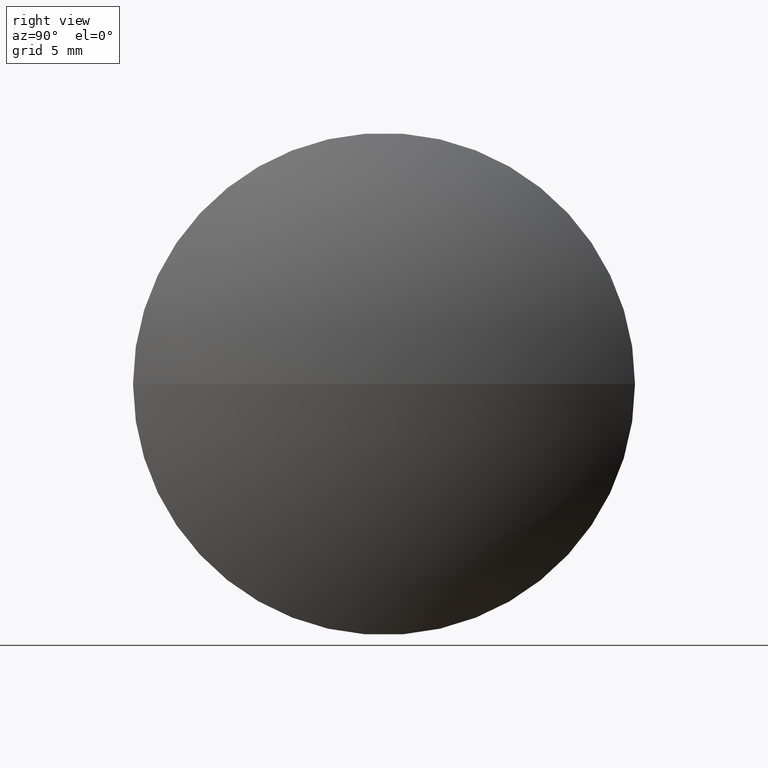
[diagram: clean part render]
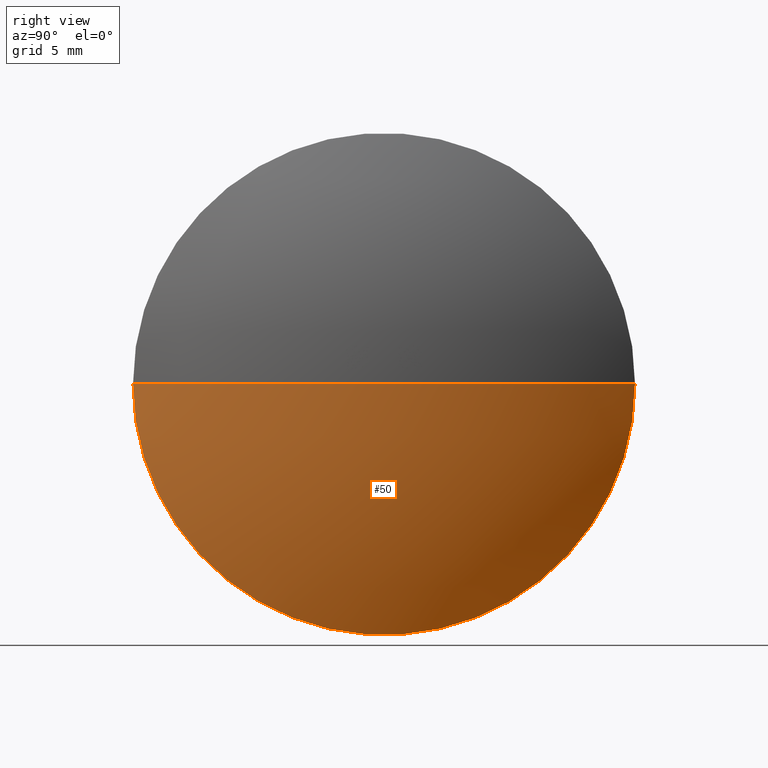
[diagram: same view with one face highlighted and labeled with its STEP entity id]
A machine part, right view. The second image highlights one B-rep face of the part: STEP entity #50.
In plain terms, the highlighted spherical surface has radius 24.1897 mm.
Its self-contained STEP definition (entity closure, byte-faithful):
#11 = CIRCLE ( 'NONE', #292, 24.18971264367814200 ) ;
#12 = VERTEX_POINT ( 'NONE', #242 ) ;
#16 = ORIENTED_EDGE ( 'NONE', *, *, #28, .T. ) ;
#22 = VERTEX_POINT ( 'NONE', #286 ) ;
#28 = EDGE_CURVE ( 'NONE', #243, #12, #36, .T. ) ;
#33 = SPHERICAL_SURFACE ( 'NONE', #43, 24.18971264367814900 ) ;
#36 = CIRCLE ( 'NONE', #298, 24.18971264367815600 ) ;
#43 = AXIS2_PLACEMENT_3D ( 'NONE', #244, #175, #245 ) ;
#50 = ADVANCED_FACE ( 'NONE', ( #268 ), #33, .T. ) ;
#55 = DIRECTION ( 'NONE',  ( 0.0000000000000000000, 1.000000000000000000, 1.224646799147352700E-016 ) ) ;
#127 = EDGE_CURVE ( 'NONE', #22, #12, #202, .T. ) ;
#144 = AXIS2_PLACEMENT_3D ( 'NONE', #158, #250, #200 ) ;
#150 = ORIENTED_EDGE ( 'NONE', *, *, #127, .F. ) ;
#158 = CARTESIAN_POINT ( 'NONE',  ( 86.09664741600609300, 47.85050494407930400, 0.0000000000000000000 ) ) ;
#162 = DIRECTION ( 'NONE',  ( 1.000000000000000000, 0.0000000000000000000, 0.0000000000000000000 ) ) ;
#165 = EDGE_CURVE ( 'NONE', #243, #22, #11, .T. ) ;
#175 = DIRECTION ( 'NONE',  ( 0.0000000000000000000, 0.0000000000000000000, -1.000000000000000000 ) ) ;
#180 = DIRECTION ( 'NONE',  ( 1.746428034274661700E-031, 1.224646799147353200E-016, -1.000000000000000000 ) ) ;
#192 = EDGE_LOOP ( 'NONE', ( #262, #16, #150 ) ) ;
#200 = DIRECTION ( 'NONE',  ( -1.110223024625159300E-015, -1.000000000000000000, 0.0000000000000000000 ) ) ;
#202 = CIRCLE ( 'NONE', #144, 12.49999999999997000 ) ;
#229 = CARTESIAN_POINT ( 'NONE',  ( 89.57664741600606800, 47.85050494407928300, 0.0000000000000000000 ) ) ;
#242 = CARTESIAN_POINT ( 'NONE',  ( 86.09664741600606400, 35.35050494407931900, -1.530808498934187200E-015 ) ) ;
#243 = VERTEX_POINT ( 'NONE', #229 ) ;
#244 = CARTESIAN_POINT ( 'NONE',  ( 65.38693477232793300, 47.85050494407931900, 0.0000000000000000000 ) ) ;
#245 = DIRECTION ( 'NONE',  ( 1.147412374197122800E-015, 1.000000000000000000, 0.0000000000000000000 ) ) ;
#250 = DIRECTION ( 'NONE',  ( -1.000000000000000000, 1.426066712043499300E-015, -0.0000000000000000000 ) ) ;
#251 = CARTESIAN_POINT ( 'NONE',  ( 65.38693477232793300, 47.85050494407931900, 0.0000000000000000000 ) ) ;
#262 = ORIENTED_EDGE ( 'NONE', *, *, #165, .F. ) ;
#268 = FACE_OUTER_BOUND ( 'NONE', #192, .T. ) ;
#286 = CARTESIAN_POINT ( 'NONE',  ( 86.09664741600610700, 60.35050494407926900, 0.0000000000000000000 ) ) ;
#292 = AXIS2_PLACEMENT_3D ( 'NONE', #251, #296, #162 ) ;
#294 = CARTESIAN_POINT ( 'NONE',  ( 65.38693477232793300, 47.85050494407931900, 0.0000000000000000000 ) ) ;
#296 = DIRECTION ( 'NONE',  ( 0.0000000000000000000, 0.0000000000000000000, 1.000000000000000000 ) ) ;
#298 = AXIS2_PLACEMENT_3D ( 'NONE', #294, #180, #55 ) ;